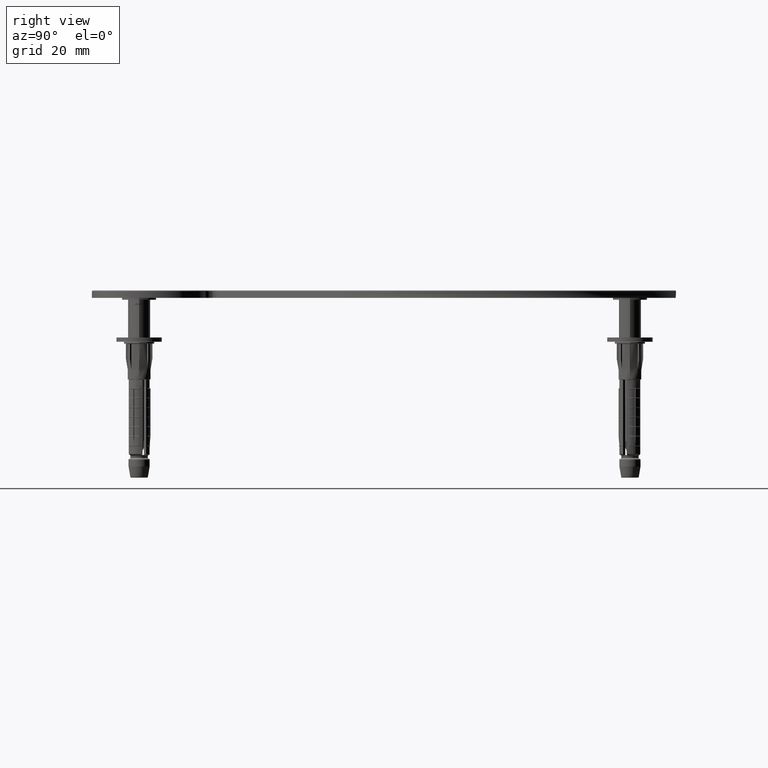
[diagram: clean part render]
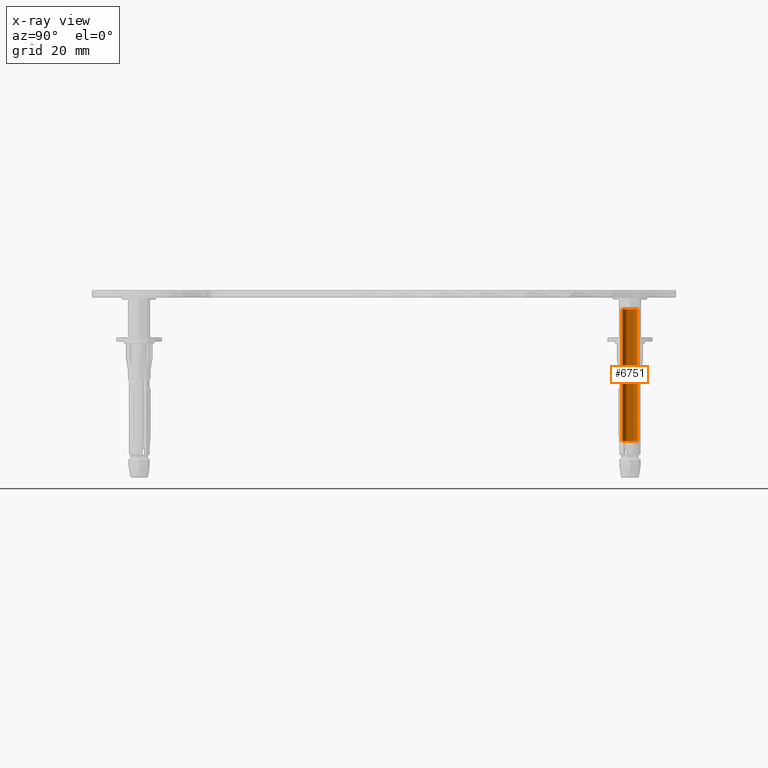
[diagram: x-ray — body ghosted, one internal face saturated and labeled with its STEP entity id]
A machine part, right view, then the same camera in x-ray: the body is ghosted and one INTERNAL B-rep face — a face not visible from any outside direction — is saturated and labeled: STEP entity #6751.
In plain terms, the highlighted cylindrical surface (edge-blend (fillet) strip) has radius 2 mm, axis along (0, 0, -1).
Its self-contained STEP definition (entity closure, byte-faithful):
#1273 = CIRCLE ( 'NONE', #16213, 1.999999999999995781 ) ;
#2428 = CARTESIAN_POINT ( 'NONE',  ( 2.629838028884532811E-41, 2.000000000000009770, -35.40999999999990422 ) ) ;
#2722 = CARTESIAN_POINT ( 'NONE',  ( 0.000000000000000000, 0.000000000000000000, -0.5000000000000073275 ) ) ;
#3656 = EDGE_CURVE ( 'NONE', #9409, #12234, #23917, .T. ) ;
#6751 = ADVANCED_FACE ( 'NONE', ( #10161 ), #7791, .T. ) ;
#7049 = CARTESIAN_POINT ( 'NONE',  ( 5.618597014461522366E-31, 1.999999999999995781, -0.5000000000000073275 ) ) ;
#7757 = DIRECTION ( 'NONE',  ( -2.548694494986879549E-32, -1.530808498934207841E-17, -1.000000000000000000 ) ) ;
#7791 = CYLINDRICAL_SURFACE ( 'NONE', #11000, 1.999999999999995781 ) ;
#7879 = DIRECTION ( 'NONE',  ( 1.314919014442269209E-41, 1.000000000000000000, 0.000000000000000000 ) ) ;
#9409 = VERTEX_POINT ( 'NONE', #7049 ) ;
#9856 = CARTESIAN_POINT ( 'NONE',  ( 2.449293598294697047E-16, -1.999999999999981792, -39.99999999999988631 ) ) ;
#10042 = AXIS2_PLACEMENT_3D ( 'NONE', #32100, #26161, #7879 ) ;
#10161 = FACE_OUTER_BOUND ( 'NONE', #16673, .T. ) ;
#10273 = DIRECTION ( 'NONE',  ( 1.314919014442269209E-41, 1.000000000000000000, 0.000000000000000000 ) ) ;
#10519 = CARTESIAN_POINT ( 'NONE',  ( 2.449293598294702963E-16, -1.999999999999981792, -35.40999999999990422 ) ) ;
#11000 = AXIS2_PLACEMENT_3D ( 'NONE', #19485, #21991, #10273 ) ;
#12234 = VERTEX_POINT ( 'NONE', #2428 ) ;
#13408 = ORIENTED_EDGE ( 'NONE', *, *, #15350, .T. ) ;
#15350 = EDGE_CURVE ( 'NONE', #9409, #23876, #1273, .T. ) ;
#16213 = AXIS2_PLACEMENT_3D ( 'NONE', #2722, #24318, #21465 ) ;
#16673 = EDGE_LOOP ( 'NONE', ( #13408, #38995, #18838, #38696 ) ) ;
#17504 = LINE ( 'NONE', #9856, #22203 ) ;
#18838 = ORIENTED_EDGE ( 'NONE', *, *, #38682, .F. ) ;
#19485 = CARTESIAN_POINT ( 'NONE',  ( 0.000000000000000000, 1.387778780781445676E-14, -39.99999999999988631 ) ) ;
#19943 = CARTESIAN_POINT ( 'NONE',  ( 2.449293598294719726E-16, -1.999999999999995781, -0.5000000000000073275 ) ) ;
#21453 = DIRECTION ( 'NONE',  ( -2.548694494986879549E-32, -1.530808498934207841E-17, -1.000000000000000000 ) ) ;
#21465 = DIRECTION ( 'NONE',  ( -1.314919014442268700E-41, -1.000000000000000000, 0.000000000000000000 ) ) ;
#21991 = DIRECTION ( 'NONE',  ( -2.548694494986879549E-32, -1.530808498934207841E-17, -1.000000000000000000 ) ) ;
#22203 = VECTOR ( 'NONE', #21453, 1000.000000000000000 ) ;
#22296 = CIRCLE ( 'NONE', #10042, 1.999999999999995781 ) ;
#23876 = VERTEX_POINT ( 'NONE', #19943 ) ;
#23917 = LINE ( 'NONE', #34749, #30511 ) ;
#24318 = DIRECTION ( 'NONE',  ( -2.548694494986879549E-32, -1.530808498934202910E-17, -1.000000000000000000 ) ) ;
#24839 = EDGE_CURVE ( 'NONE', #23876, #29931, #17504, .T. ) ;
#26161 = DIRECTION ( 'NONE',  ( -2.548694494986879549E-32, -1.530808498934207841E-17, -1.000000000000000000 ) ) ;
#29931 = VERTEX_POINT ( 'NONE', #10519 ) ;
#30511 = VECTOR ( 'NONE', #7757, 1000.000000000000000 ) ;
#32100 = CARTESIAN_POINT ( 'NONE',  ( 0.000000000000000000, 1.387778780781445676E-14, -35.40999999999990422 ) ) ;
#34749 = CARTESIAN_POINT ( 'NONE',  ( 2.629838028884532811E-41, 2.000000000000009770, -39.99999999999988631 ) ) ;
#38682 = EDGE_CURVE ( 'NONE', #12234, #29931, #22296, .T. ) ;
#38696 = ORIENTED_EDGE ( 'NONE', *, *, #3656, .F. ) ;
#38995 = ORIENTED_EDGE ( 'NONE', *, *, #24839, .T. ) ;